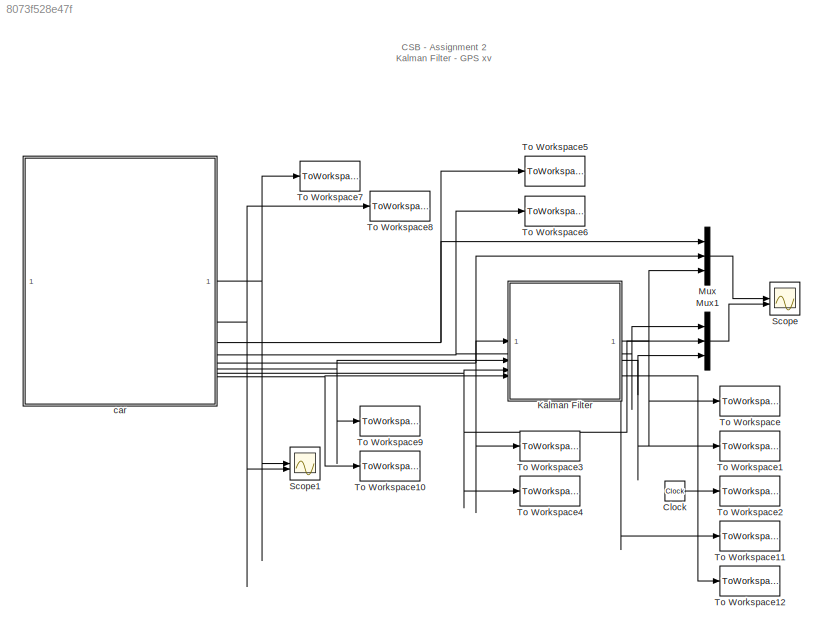
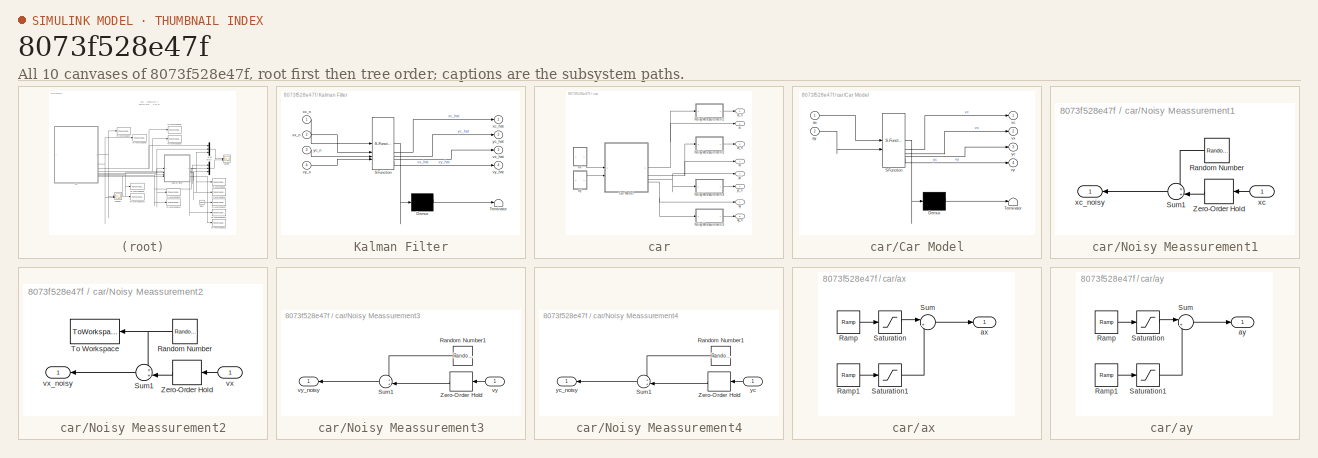
[diagram: thumbnail index - all 10 canvases of the model, root first then tree order]
MODEL slx_8073f528e47f
KIND model
CONFIG AbsTol = auto
CONFIG EnableMultiTasking = off
CONFIG FixedStep = auto
CONFIG MaxStep = auto
CONFIG MinStep = auto
CONFIG RelTol = 1e-3
CONFIG SampleTimeConstraint = Unconstrained
CONFIG SolverName = VariableStepAuto
CONFIG StartTime = 0.0
CONFIG StopTime = 200
BLOCK [Clock] Clock
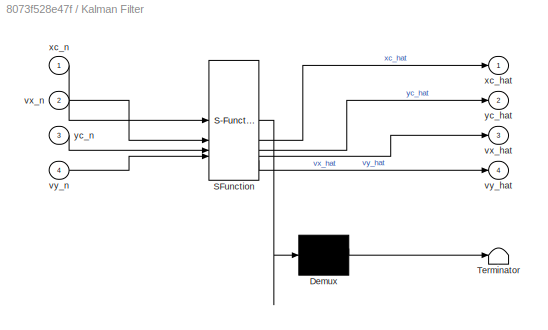
BLOCK [SubSystem] Kalman Filter
  ErrorFcn = Stateflow.Translate.translate
  PermitHierarchicalResolution = ExplicitOnly
  SFBlockType = MATLAB Function
  SystemSampleTime = Ts
  TreatAsAtomicUnit = on
BLOCK [Demux] Kalman Filter/ Demux 
  Outputs = 1
BLOCK [S-Function] Kalman Filter/ SFunction 
  EnableBusSupport = on
  FunctionName = sf_sfun
  Parameters = A,C,Kf,xo_hat
  PortCounts = [4 5]
  SFcnIsStateOwnerBlock = off
  SFunctionDeploymentMode = off
  Tag = Stateflow S-Function 2
BLOCK [Terminator] Kalman Filter/ Terminator 
BLOCK [Outport] Kalman Filter/vx_hat
  Port = 3
BLOCK [Inport] Kalman Filter/vx_n
  Port = 2
BLOCK [Outport] Kalman Filter/vy_hat
  Port = 4
BLOCK [Inport] Kalman Filter/vy_n
  Port = 4
BLOCK [Outport] Kalman Filter/xc_hat
  VectorParamsAs1DForOutWhenUnconnected = off
BLOCK [Inport] Kalman Filter/xc_n
BLOCK [Outport] Kalman Filter/yc_hat
  Port = 2
  VectorParamsAs1DForOutWhenUnconnected = off
BLOCK [Inport] Kalman Filter/yc_n
  Port = 3
BLOCK [Mux] Mux
  DisplayOption = bar
  Inputs = 3
BLOCK [Mux] Mux1
  DisplayOption = bar
  Inputs = 3
BLOCK [Scope] Scope
  Floating = off
  NumInputPorts = 2
  ScopeSpecificationString = Simulink.scopes.TimeScopeBlockCfg('CurrentConfiguration', extmgr.ConfigurationSet(extmgr.Configuration('Core','General UI',true),extmgr.Configuration('Core','Source UI',true),extmgr.Configuration('Sources','WiredSimulink',true,'DataLoggingVariableName','ScopeData1'),extmgr.Configuration('Visuals','Time Domain',true,'SerializedDisplays',{struct('MinYLimReal','-16.19767','MaxYLimReal','62.58407','YL...<+2162ch>
BLOCK [Scope] Scope1
  Floating = off
  NumInputPorts = 2
  ScopeSpecificationString = Simulink.scopes.TimeScopeBlockCfg('CurrentConfiguration', extmgr.ConfigurationSet(extmgr.Configuration('Core','General UI',true),extmgr.Configuration('Core','Source UI',true),extmgr.Configuration('Sources','WiredSimulink',true,'DataLoggingVariableName','ScopeData1'),extmgr.Configuration('Visuals','Time Domain',true,'SerializedDisplays',{struct('MinYLimReal','-0.08765','MaxYLimReal','0.78883','YLab...<+2121ch>
BLOCK [ToWorkspace] To Workspace
  FixptAsFi = on
  MaxDataPoints = inf
  SampleTime = Ts
  VariableName = xc_hat
BLOCK [ToWorkspace] To Workspace1
  FixptAsFi = on
  MaxDataPoints = inf
  SampleTime = Ts
  VariableName = yc_hat
BLOCK [ToWorkspace] To Workspace10
  FixptAsFi = on
  MaxDataPoints = inf
  SampleTime = Ts
  VariableName = vy_n
BLOCK [ToWorkspace] To Workspace11
  FixptAsFi = on
  MaxDataPoints = inf
  SampleTime = Ts
  VariableName = vx_hat
BLOCK [ToWorkspace] To Workspace12
  FixptAsFi = on
  MaxDataPoints = inf
  SampleTime = Ts
  VariableName = vy_hat
BLOCK [ToWorkspace] To Workspace2
  FixptAsFi = on
  MaxDataPoints = inf
  SampleTime = Ts
  VariableName = time
BLOCK [ToWorkspace] To Workspace3
  FixptAsFi = on
  MaxDataPoints = inf
  SampleTime = Ts
  VariableName = xc_n
BLOCK [ToWorkspace] To Workspace4
  FixptAsFi = on
  MaxDataPoints = inf
  SampleTime = Ts
  VariableName = yc_n
BLOCK [ToWorkspace] To Workspace5
  FixptAsFi = on
  MaxDataPoints = inf
  SampleTime = Ts
  VariableName = xc
BLOCK [ToWorkspace] To Workspace6
  FixptAsFi = on
  MaxDataPoints = inf
  SampleTime = Ts
  VariableName = yc
BLOCK [ToWorkspace] To Workspace7
  FixptAsFi = on
  MaxDataPoints = inf
  SampleTime = Ts
  VariableName = vx
BLOCK [ToWorkspace] To Workspace8
  FixptAsFi = on
  MaxDataPoints = inf
  SampleTime = Ts
  VariableName = vy
BLOCK [ToWorkspace] To Workspace9
  FixptAsFi = on
  MaxDataPoints = inf
  SampleTime = Ts
  VariableName = vx_n
BLOCK [SubSystem] car
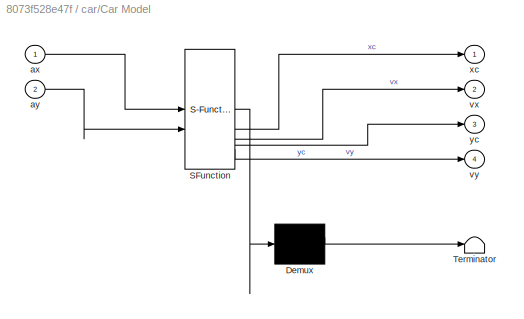
BLOCK [SubSystem] car/Car Model
  ErrorFcn = Stateflow.Translate.translate
  LibrarySourceBlock = simulink/User-Defined\nFunctions/MATLAB Function
  PermitHierarchicalResolution = ExplicitOnly
  SFBlockType = MATLAB Function
  SystemSampleTime = 0.1
  TreatAsAtomicUnit = on
BLOCK [Demux] car/Car Model/ Demux 
  Outputs = 1
BLOCK [S-Function] car/Car Model/ SFunction 
  EnableBusSupport = on
  FunctionName = sf_sfun
  PortCounts = [2 5]
  SFcnIsStateOwnerBlock = off
  SFunctionDeploymentMode = off
  Tag = Stateflow S-Function 1
BLOCK [Terminator] car/Car Model/ Terminator 
BLOCK [Inport] car/Car Model/ax
BLOCK [Inport] car/Car Model/ay
  Port = 2
BLOCK [Outport] car/Car Model/vx
  Port = 2
BLOCK [Outport] car/Car Model/vy
  Port = 4
BLOCK [Outport] car/Car Model/xc
BLOCK [Outport] car/Car Model/yc
  Port = 3
BLOCK [SubSystem] car/Noisy Meassurement1
BLOCK [RandomNumber] car/Noisy Meassurement1/Random Number
  NameLocation = top
  SampleTime = Ts
  Seed = 1
  Variance = 8
BLOCK [Sum] car/Noisy Meassurement1/Sum1
  Inputs = ++|
  NameLocation = top
BLOCK [ZeroOrderHold] car/Noisy Meassurement1/Zero-Order Hold
  NameLocation = top
  SampleTime = 1/fgps
BLOCK [Inport] car/Noisy Meassurement1/xc
  NameLocation = top
BLOCK [Outport] car/Noisy Meassurement1/xc_noisy
  VectorParamsAs1DForOutWhenUnconnected = off
BLOCK [SubSystem] car/Noisy Meassurement2
BLOCK [RandomNumber] car/Noisy Meassurement2/Random Number
  NameLocation = top
  SampleTime = Ts
  Seed = 1
  Variance = 0.1
BLOCK [Sum] car/Noisy Meassurement2/Sum1
  Inputs = ++|
  NameLocation = top
BLOCK [ToWorkspace] car/Noisy Meassurement2/To Workspace
  FixptAsFi = on
  MaxDataPoints = inf
  NameLocation = top
  SampleTime = Ts
  VariableName = noise_vx
BLOCK [ZeroOrderHold] car/Noisy Meassurement2/Zero-Order Hold
  NameLocation = top
  SampleTime = 1/fgps
BLOCK [Inport] car/Noisy Meassurement2/vx
  NameLocation = top
BLOCK [Outport] car/Noisy Meassurement2/vx_noisy
  VectorParamsAs1DForOutWhenUnconnected = off
BLOCK [SubSystem] car/Noisy Meassurement3
BLOCK [RandomNumber] car/Noisy Meassurement3/Random Number1
  NameLocation = top
  SampleTime = Ts
  Seed = -1
  Variance = 0.1
BLOCK [Sum] car/Noisy Meassurement3/Sum1
  Inputs = ++|
  NameLocation = top
BLOCK [ZeroOrderHold] car/Noisy Meassurement3/Zero-Order Hold
  NameLocation = top
  SampleTime = 1/fgps
BLOCK [Inport] car/Noisy Meassurement3/vy
  NameLocation = top
BLOCK [Outport] car/Noisy Meassurement3/vy_noisy
  VectorParamsAs1DForOutWhenUnconnected = off
BLOCK [SubSystem] car/Noisy Meassurement4
BLOCK [RandomNumber] car/Noisy Meassurement4/Random Number1
  NameLocation = top
  SampleTime = Ts
  Seed = -1
  Variance = 12
BLOCK [Sum] car/Noisy Meassurement4/Sum1
  Inputs = ++|
  NameLocation = top
BLOCK [ZeroOrderHold] car/Noisy Meassurement4/Zero-Order Hold
  NameLocation = top
  SampleTime = 1/fgps
BLOCK [Inport] car/Noisy Meassurement4/yc
  NameLocation = top
BLOCK [Outport] car/Noisy Meassurement4/yc_noisy
  VectorParamsAs1DForOutWhenUnconnected = off
BLOCK [SubSystem] car/ax 
BLOCK [Reference] car/ax /Ramp  REF=simulink/Sources/Ramp
  SourceBlock = simulink/Sources/Ramp
  SourceType = Ramp
BLOCK [Reference] car/ax /Ramp1  REF=simulink/Sources/Ramp
  SourceBlock = simulink/Sources/Ramp
  SourceType = Ramp
BLOCK [Saturate] car/ax /Saturation
  LowerLimit = 0
  UpperLimit = 100
BLOCK [Saturate] car/ax /Saturation1
  LowerLimit = -90
  UpperLimit = 1
BLOCK [Sum] car/ax /Sum
  Inputs = |++
BLOCK [Outport] car/ax /ax
  VectorParamsAs1DForOutWhenUnconnected = off
BLOCK [SubSystem] car/ay 
BLOCK [Reference] car/ay /Ramp  REF=simulink/Sources/Ramp
  SourceBlock = simulink/Sources/Ramp
  SourceType = Ramp
BLOCK [Reference] car/ay /Ramp1  REF=simulink/Sources/Ramp
  SourceBlock = simulink/Sources/Ramp
  SourceType = Ramp
BLOCK [Saturate] car/ay /Saturation
  LowerLimit = 0
  UpperLimit = 400
BLOCK [Saturate] car/ay /Saturation1
  LowerLimit = -400
  UpperLimit = 0
BLOCK [Sum] car/ay /Sum
  Inputs = |++
BLOCK [Outport] car/ay /ay
  VectorParamsAs1DForOutWhenUnconnected = off
BLOCK [Outport] car/vx
  VectorParamsAs1DForOutWhenUnconnected = off
BLOCK [Outport] car/vx_n
  Port = 6
  VectorParamsAs1DForOutWhenUnconnected = off
BLOCK [Outport] car/vy
  Port = 2
  VectorParamsAs1DForOutWhenUnconnected = off
BLOCK [Outport] car/vy_n
  Port = 8
  VectorParamsAs1DForOutWhenUnconnected = off
BLOCK [Outport] car/xc
  Port = 3
  VectorParamsAs1DForOutWhenUnconnected = off
BLOCK [Outport] car/xc_n
  Port = 5
  VectorParamsAs1DForOutWhenUnconnected = off
BLOCK [Outport] car/yc
  Port = 4
  VectorParamsAs1DForOutWhenUnconnected = off
BLOCK [Outport] car/yc_n
  Port = 7
  VectorParamsAs1DForOutWhenUnconnected = off
ANNOTATION (root): CSB - Assignment 2 Kalman Filter - GPS xv
LINE Clock:1 -> To Workspace2:1
NET Kalman Filter:1 -> Mux:3, To Workspace:1
NET Kalman Filter:2 -> Mux1:3, To Workspace1:1
LINE Kalman Filter:3 -> To Workspace11:1
LINE Kalman Filter:4 -> To Workspace12:1
LINE Mux1:1 -> Scope:2
LINE Mux:1 -> Scope:1
NET car/Car Model:1 -> car/Noisy Meassurement1:1, car/xc:1
NET car/Car Model:2 -> car/Noisy Meassurement2:1, car/vx:1
NET car/Car Model:3 -> car/Noisy Meassurement4:1, car/yc:1
NET car/Car Model:4 -> car/Noisy Meassurement3:1, car/vy:1
LINE car/Noisy Meassurement1/Random Number:1 -> car/Noisy Meassurement1/Sum1:1
LINE car/Noisy Meassurement1/Sum1:1 -> car/Noisy Meassurement1/xc_noisy:1
LINE car/Noisy Meassurement1/Zero-Order Hold:1 -> car/Noisy Meassurement1/Sum1:2
LINE car/Noisy Meassurement1/xc:1 -> car/Noisy Meassurement1/Zero-Order Hold:1
LINE car/Noisy Meassurement1:1 -> car/xc_n:1
NET car/Noisy Meassurement2/Random Number:1 -> car/Noisy Meassurement2/Sum1:1, car/Noisy Meassurement2/To Workspace:1
LINE car/Noisy Meassurement2/Sum1:1 -> car/Noisy Meassurement2/vx_noisy:1
LINE car/Noisy Meassurement2/Zero-Order Hold:1 -> car/Noisy Meassurement2/Sum1:2
LINE car/Noisy Meassurement2/vx:1 -> car/Noisy Meassurement2/Zero-Order Hold:1
LINE car/Noisy Meassurement2:1 -> car/vx_n:1
LINE car/Noisy Meassurement3/Random Number1:1 -> car/Noisy Meassurement3/Sum1:1
LINE car/Noisy Meassurement3/Sum1:1 -> car/Noisy Meassurement3/vy_noisy:1
LINE car/Noisy Meassurement3/Zero-Order Hold:1 -> car/Noisy Meassurement3/Sum1:2
LINE car/Noisy Meassurement3/vy:1 -> car/Noisy Meassurement3/Zero-Order Hold:1
LINE car/Noisy Meassurement3:1 -> car/vy_n:1
LINE car/Noisy Meassurement4/Random Number1:1 -> car/Noisy Meassurement4/Sum1:1
LINE car/Noisy Meassurement4/Sum1:1 -> car/Noisy Meassurement4/yc_noisy:1
LINE car/Noisy Meassurement4/Zero-Order Hold:1 -> car/Noisy Meassurement4/Sum1:2
LINE car/Noisy Meassurement4/yc:1 -> car/Noisy Meassurement4/Zero-Order Hold:1
LINE car/Noisy Meassurement4:1 -> car/yc_n:1
LINE car/ax /Ramp1:1 -> car/ax /Saturation1:1
LINE car/ax /Ramp:1 -> car/ax /Saturation:1
LINE car/ax /Saturation1:1 -> car/ax /Sum:2
LINE car/ax /Saturation:1 -> car/ax /Sum:1
LINE car/ax /Sum:1 -> car/ax /ax:1
LINE car/ax :1 -> car/Car Model:1
LINE car/ay /Ramp1:1 -> car/ay /Saturation1:1
LINE car/ay /Ramp:1 -> car/ay /Saturation:1
LINE car/ay /Saturation1:1 -> car/ay /Sum:2
LINE car/ay /Saturation:1 -> car/ay /Sum:1
LINE car/ay /Sum:1 -> car/ay /ay:1
LINE car/ay :1 -> car/Car Model:2
NET car:1 -> Scope1:1, To Workspace7:1
NET car:2 -> Scope1:2, To Workspace8:1
NET car:3 -> Mux:1, To Workspace5:1
NET car:4 -> Mux1:1, To Workspace6:1
NET car:5 -> Kalman Filter:1, Mux:2, To Workspace3:1
NET car:6 -> Kalman Filter:2, To Workspace9:1
NET car:7 -> Kalman Filter:3, Mux1:2, To Workspace4:1
NET car:8 -> Kalman Filter:4, To Workspace10:1
note: NET lines group one-source signal fan-out (src -> all destinations, sorted); 1:1 wires keep LINE
CHART car/Car Model states=1 transitions=1
  STATE_LABEL 'eML_blk_kernel()'
  STATE_LABEL 'SCRIPT:\nfunction [xc,vx,yc,vy] = fnc(ax, ay)\n    [xc,vx,yc,vy] = car_vxy_model(ax,ay);\nend\n\n'
CHART Kalman Filter states=1 transitions=1
  STATE_LABEL 'eML_blk_kernel()'
  STATE_LABEL 'SCRIPT:\nfunction [xc_hat,yc_hat, vx_hat, vy_hat] = Filter(xc_n,vx_n, yc_n, vy_n, A, C, Kf,xo_hat)\n% in1 to in4 are external signals\n% After in4, you can add any variable from the workspace\n% In "Edit Data", asign these variables as parameters.\n\n%% Use persistent for variables that require memory\npersistent x_hat_k      % Present state estimate \n    if isempty(x_hat_k) \n        x_hat_k = xo_hat;  %...<+560ch>'
CHART  states=0 transitions=0
CHART  states=0 transitions=0
